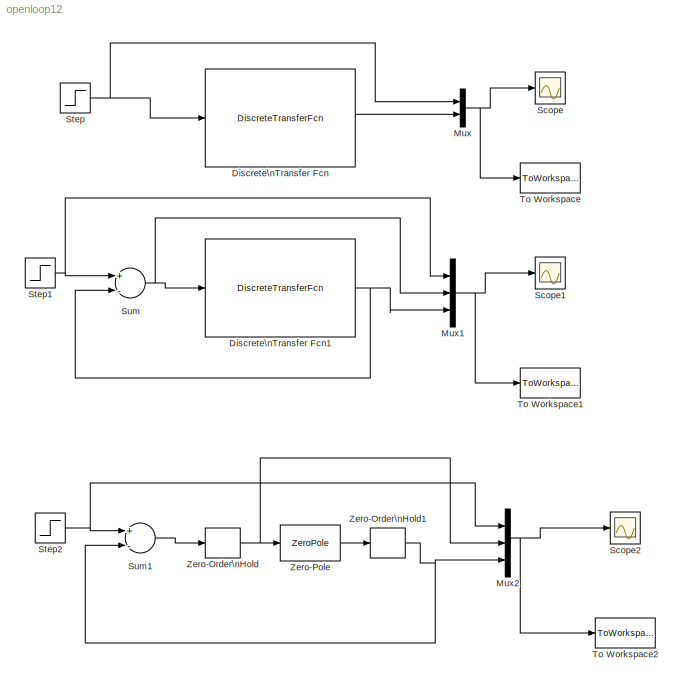
MODEL openloop12
KIND model
BLOCK [DiscreteTransferFcn] Discrete\nTransfer Fcn
  Denominator = denz
  Numerator = numz
  Ports = [1, 1]
  SID = 1
  SampleTime = 0.1541
BLOCK [DiscreteTransferFcn] Discrete\nTransfer Fcn1
  Denominator = denz
  Numerator = numz
  Ports = [1, 1]
  SID = 7
  SampleTime = 0.1541
BLOCK [Mux] Mux
  DisplayOption = bar
  Inputs = 2
  Ports = [2, 1]
  SID = 5
BLOCK [Mux] Mux1
  DisplayOption = bar
  Inputs = 3
  Ports = [3, 1]
  SID = 8
BLOCK [Mux] Mux2
  DisplayOption = bar
  Inputs = 3
  Ports = [3, 1]
  SID = 12
BLOCK [Scope] Scope
  DataFormat = StructureWithTime
  Floating = off
  NumInputPorts = 1
  Ports = [1]
  SID = 3
  SampleTime = 0
BLOCK [Scope] Scope1
  DataFormat = StructureWithTime
  Floating = off
  NumInputPorts = 1
  Ports = [1]
  SID = 10
  SampleTime = 0
  SaveName = ScopeData1
BLOCK [Scope] Scope2
  DataFormat = StructureWithTime
  Floating = off
  NumInputPorts = 1
  Ports = [1]
  SID = 13
  SampleTime = 0
  SaveName = ScopeData2
BLOCK [Step] Step
  SID = 2
  SampleTime = 0
  Time = 0
BLOCK [Step] Step1
  SID = 6
  SampleTime = 0
  Time = 0
BLOCK [Step] Step2
  SID = 14
  SampleTime = 0
  Time = 0
BLOCK [Sum] Sum
  InputSameDT = off
  Inputs = +-
  OutDataType = fixdt(1, 16)
  OutDataTypeMode = Inherit via internal rule
  OutDataTypeStr = Inherit: Inherit via internal rule
  OutScaling = 2^0
  Ports = [2, 1]
  SID = 11
  SaturateOnIntegerOverflow = off
BLOCK [Sum] Sum1
  InputSameDT = off
  Inputs = +-
  OutDataType = fixdt(1, 16)
  OutDataTypeMode = Inherit via internal rule
  OutDataTypeStr = Inherit: Inherit via internal rule
  OutScaling = 2^0
  Ports = [2, 1]
  SID = 15
  SaturateOnIntegerOverflow = off
BLOCK [ToWorkspace] To Workspace
  MaxDataPoints = inf
  Ports = [1]
  SID = 4
  SampleTime = -1
  SaveFormat = Structure
  VariableName = simout
BLOCK [ToWorkspace] To Workspace1
  MaxDataPoints = inf
  Ports = [1]
  SID = 9
  SampleTime = -1
  SaveFormat = Structure
  VariableName = simout1
BLOCK [ToWorkspace] To Workspace2
  MaxDataPoints = inf
  Ports = [1]
  SID = 16
  SampleTime = -1
  SaveFormat = Structure
  VariableName = simout2
BLOCK [ZeroOrderHold] Zero-Order\nHold
  SID = 18
  SampleTime = 0.1541
BLOCK [ZeroOrderHold] Zero-Order\nHold1
  SID = 19
  SampleTime = 0.1541
BLOCK [ZeroPole] Zero-Pole
  Poles = [-3 -5]
  SID = 17
  Zeros = -1
NET Discrete\nTransfer Fcn1:1 -> Mux1:3, Sum:2
LINE Discrete\nTransfer Fcn:1 -> Mux:2
NET Mux1:1 -> Scope1:1, To Workspace1:1
NET Mux2:1 -> Scope2:1, To Workspace2:1
NET Mux:1 -> Scope:1, To Workspace:1
NET Step1:1 -> Mux1:1, Sum:1
NET Step2:1 -> Mux2:1, Sum1:1
NET Step:1 -> Discrete\nTransfer Fcn:1, Mux:1
LINE Sum1:1 -> Zero-Order\nHold:1
NET Sum:1 -> Discrete\nTransfer Fcn1:1, Mux1:2
NET Zero-Order\nHold1:1 -> Mux2:3, Sum1:2
NET Zero-Order\nHold:1 -> Mux2:2, Zero-Pole:1
LINE Zero-Pole:1 -> Zero-Order\nHold1:1
note: NET lines group one-source signal fan-out (src -> all destinations, sorted); 1:1 wires keep LINE
